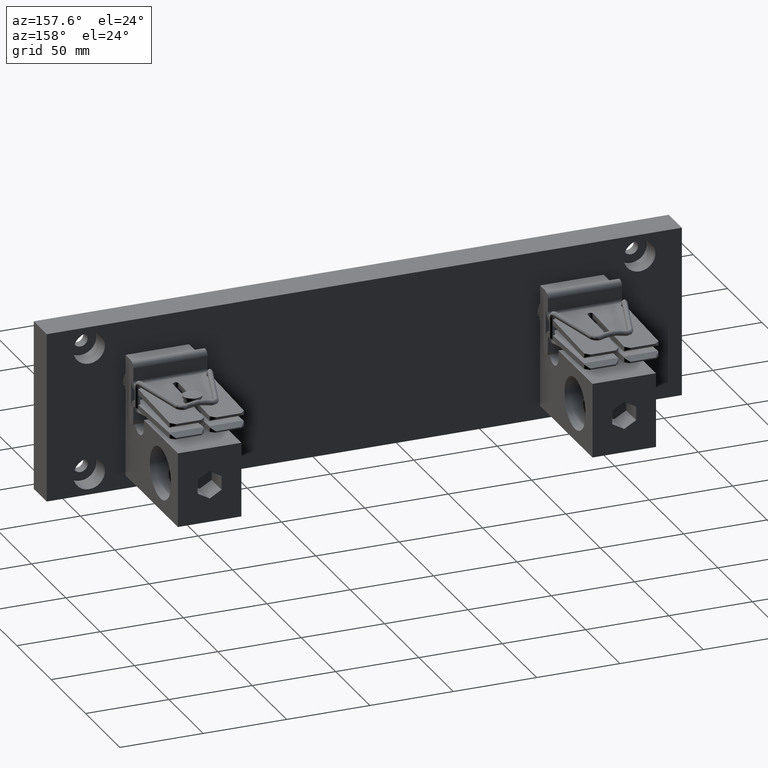
[diagram: clean part render]
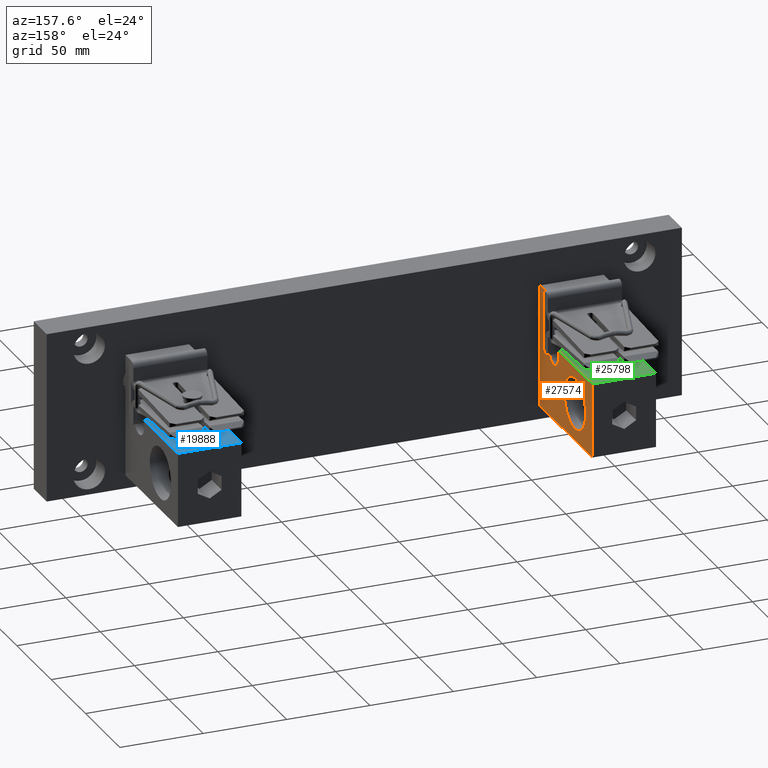
[diagram: same view with three faces highlighted in distinct colors, each labeled with its STEP entity id]
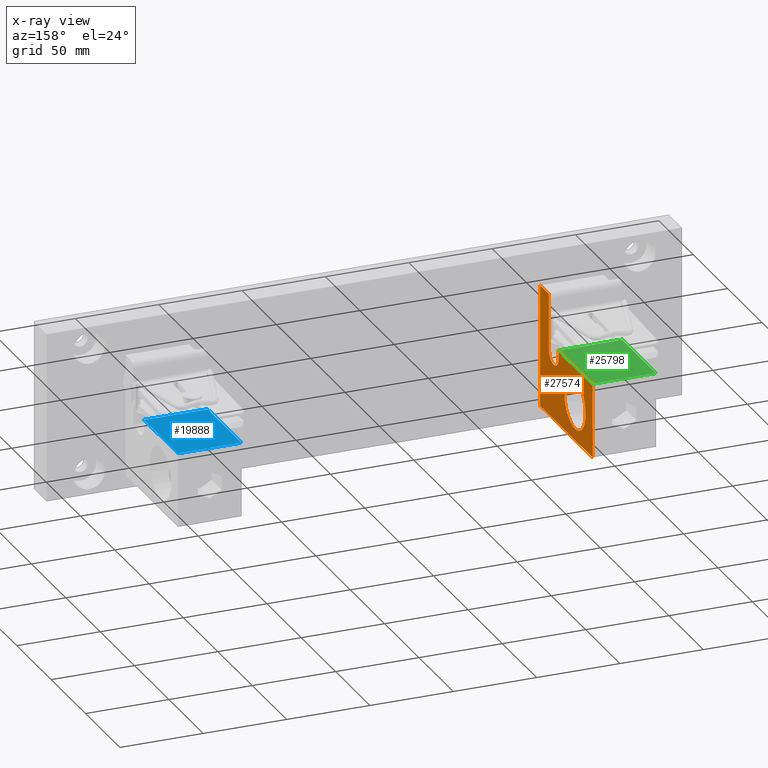
[diagram: x-ray of the same camera — body ghosted, the three highlighted faces saturated]
A machine part, auxiliary view with three faces highlighted in distinct colors.
The next image is the same camera in x-ray (body ghosted, the three faces saturated) — at least one of them is partly hidden behind the body in this view.
Their STEP definitions:

[orange] entity #27574 — the highlighted planar face has unit normal (-1, -0, 0).
#133 = ORIENTED_EDGE ( 'NONE', *, *, #3349, .F. ) ;
#528 = FACE_OUTER_BOUND ( 'NONE', #13735, .T. ) ;
#1129 = VERTEX_POINT ( 'NONE', #12128 ) ;
#1317 = CARTESIAN_POINT ( 'NONE',  ( 0.7500000000000001100, 0.5599999999999997200, -0.6700000000000002600 ) ) ;
#1650 = EDGE_CURVE ( 'NONE', #13531, #17684, #15294, .T. ) ;
#1754 = VERTEX_POINT ( 'NONE', #19779 ) ;
#1758 = VECTOR ( 'NONE', #7802, 39.37007874015748100 ) ;
#2224 = CARTESIAN_POINT ( 'NONE',  ( 0.7499999999999993300, 1.499999999999999800, -1.375000000000000000 ) ) ;
#2800 = ORIENTED_EDGE ( 'NONE', *, *, #27506, .F. ) ;
#3053 = CARTESIAN_POINT ( 'NONE',  ( 0.7500000000000001100, 0.2799999999999998600, -0.6700000000000002600 ) ) ;
#3349 = EDGE_CURVE ( 'NONE', #1754, #23764, #12675, .T. ) ;
#3625 = DIRECTION ( 'NONE',  ( -3.835122127709274900E-017, 1.000000000000000000, 7.219288648996673600E-018 ) ) ;
#3735 = VECTOR ( 'NONE', #4791, 39.37007874015748100 ) ;
#3784 = VECTOR ( 'NONE', #7106, 39.37007874015748100 ) ;
#4087 = LINE ( 'NONE', #11709, #3735 ) ;
#4199 = CARTESIAN_POINT ( 'NONE',  ( 0.7500000000000001100, -1.365923996832131600E-016, -0.6700000000000002600 ) ) ;
#4546 = DIRECTION ( 'NONE',  ( 2.242896546522383700E-016, 0.0000000000000000000, 1.000000000000000000 ) ) ;
#4791 = DIRECTION ( 'NONE',  ( 3.835122127709275500E-017, -1.000000000000000000, 2.647359470298892500E-017 ) ) ;
#5254 = CARTESIAN_POINT ( 'NONE',  ( 0.7499999999999996700, -0.5000000000000000000, -2.255000000000000300 ) ) ;
#5387 = DIRECTION ( 'NONE',  ( 2.220446049250313100E-016, -7.219288648996664300E-018, 1.000000000000000000 ) ) ;
#5470 = VERTEX_POINT ( 'NONE', #10855 ) ;
#5904 = ORIENTED_EDGE ( 'NONE', *, *, #13858, .F. ) ;
#6220 = EDGE_CURVE ( 'NONE', #9141, #17774, #11582, .T. ) ;
#6612 = EDGE_CURVE ( 'NONE', #17684, #1129, #25476, .T. ) ;
#7106 = DIRECTION ( 'NONE',  ( -2.220446049250313100E-016, -9.825746786313706100E-017, -1.000000000000000000 ) ) ;
#7802 = DIRECTION ( 'NONE',  ( 2.220446049250313100E-016, -7.219288648996664300E-018, 1.000000000000000000 ) ) ;
#8055 = EDGE_CURVE ( 'NONE', #5470, #13531, #9825, .T. ) ;
#8548 = CARTESIAN_POINT ( 'NONE',  ( 0.7500000000000003300, -0.5000000000000000000, 0.6250000000000000000 ) ) ;
#8685 = ORIENTED_EDGE ( 'NONE', *, *, #6220, .F. ) ;
#8819 = CARTESIAN_POINT ( 'NONE',  ( 0.7499999999999995600, 1.499999999999999800, -0.7660000000000000100 ) ) ;
#9133 = CARTESIAN_POINT ( 'NONE',  ( 0.7500000000000001100, 0.5599999999999999400, -0.6700000000000002600 ) ) ;
#9141 = VERTEX_POINT ( 'NONE', #5254 ) ;
#9644 = CARTESIAN_POINT ( 'NONE',  ( 0.7500000000000003300, -0.5000000000000000000, 0.6250000000000000000 ) ) ;
#9825 = LINE ( 'NONE', #20528, #3784 ) ;
#10121 = LINE ( 'NONE', #9644, #27322 ) ;
#10855 = CARTESIAN_POINT ( 'NONE',  ( 0.7500000000000003300, 0.0000000000000000000, 0.6250000000000000000 ) ) ;
#10856 = LINE ( 'NONE', #17101, #24157 ) ;
#11199 = CIRCLE ( 'NONE', #20645, 0.6089999999999999900 ) ;
#11582 = LINE ( 'NONE', #25749, #1758 ) ;
#11709 = CARTESIAN_POINT ( 'NONE',  ( 0.7499999999999995600, 2.500000000000000000, -2.255000000000000300 ) ) ;
#12128 = CARTESIAN_POINT ( 'NONE',  ( 0.7500000000000001100, 0.5599999999999997200, -0.4950000000000000500 ) ) ;
#12675 = LINE ( 'NONE', #21938, #19154 ) ;
#13531 = VERTEX_POINT ( 'NONE', #4199 ) ;
#13657 = ORIENTED_EDGE ( 'NONE', *, *, #25190, .F. ) ;
#13735 = EDGE_LOOP ( 'NONE', ( #13657, #133, #5904, #15896, #15248, #14757, #2800, #8685 ) ) ;
#13858 = EDGE_CURVE ( 'NONE', #1129, #1754, #10856, .T. ) ;
#14757 = ORIENTED_EDGE ( 'NONE', *, *, #8055, .F. ) ;
#15248 = ORIENTED_EDGE ( 'NONE', *, *, #1650, .F. ) ;
#15294 = CIRCLE ( 'NONE', #19023, 0.2799999999999999700 ) ;
#15303 = ORIENTED_EDGE ( 'NONE', *, *, #26926, .T. ) ;
#15896 = ORIENTED_EDGE ( 'NONE', *, *, #6612, .F. ) ;
#17101 = CARTESIAN_POINT ( 'NONE',  ( 0.7500000000000001100, 0.5599999999999997200, -0.4950000000000000500 ) ) ;
#17684 = VERTEX_POINT ( 'NONE', #9133 ) ;
#17774 = VERTEX_POINT ( 'NONE', #8548 ) ;
#18015 = DIRECTION ( 'NONE',  ( -1.000000000000000000, -3.835122127709274900E-017, 2.220446049250313100E-016 ) ) ;
#18848 = DIRECTION ( 'NONE',  ( -1.000000000000000000, -3.835122127709274900E-017, 2.220446049250313100E-016 ) ) ;
#19023 = AXIS2_PLACEMENT_3D ( 'NONE', #20522, #20332, #19867 ) ;
#19154 = VECTOR ( 'NONE', #23117, 39.37007874015748100 ) ;
#19384 = AXIS2_PLACEMENT_3D ( 'NONE', #3053, #18848, #5387 ) ;
#19779 = CARTESIAN_POINT ( 'NONE',  ( 0.7499999999999998900, 2.500000000000000400, -0.4950000000000000500 ) ) ;
#19867 = DIRECTION ( 'NONE',  ( 0.0000000000000000000, 0.0000000000000000000, 1.000000000000000000 ) ) ;
#20332 = DIRECTION ( 'NONE',  ( 1.000000000000000000, 3.835122127709274900E-017, -2.220446049250313100E-016 ) ) ;
#20522 = CARTESIAN_POINT ( 'NONE',  ( 0.7500000000000001100, 0.2799999999999998600, -0.6700000000000002600 ) ) ;
#20528 = CARTESIAN_POINT ( 'NONE',  ( 0.7500000000000003300, 0.0000000000000000000, 0.6250000000000000000 ) ) ;
#20645 = AXIS2_PLACEMENT_3D ( 'NONE', #2224, #18015, #4546 ) ;
#20987 = PLANE ( 'NONE',  #19384 ) ;
#21938 = CARTESIAN_POINT ( 'NONE',  ( 0.7499999999999998900, 2.500000000000000400, -0.4950000000000000500 ) ) ;
#23117 = DIRECTION ( 'NONE',  ( -2.220446049250313100E-016, -3.032179833583060000E-016, -1.000000000000000000 ) ) ;
#23764 = VERTEX_POINT ( 'NONE', #29059 ) ;
#23776 = FACE_BOUND ( 'NONE', #25377, .T. ) ;
#24157 = VECTOR ( 'NONE', #3625, 39.37007874015748100 ) ;
#24404 = VECTOR ( 'NONE', #26040, 39.37007874015748100 ) ;
#25190 = EDGE_CURVE ( 'NONE', #23764, #9141, #4087, .T. ) ;
#25331 = DIRECTION ( 'NONE',  ( -3.835122127709274900E-017, 1.000000000000000000, 7.219288648996673600E-018 ) ) ;
#25377 = EDGE_LOOP ( 'NONE', ( #15303 ) ) ;
#25476 = LINE ( 'NONE', #1317, #24404 ) ;
#25749 = CARTESIAN_POINT ( 'NONE',  ( 0.7499999999999996700, -0.5000000000000000000, -2.255000000000000300 ) ) ;
#26040 = DIRECTION ( 'NONE',  ( 2.220446049250313100E-016, -7.219288648996664300E-018, 1.000000000000000000 ) ) ;
#26926 = EDGE_CURVE ( 'NONE', #28838, #28838, #11199, .T. ) ;
#27322 = VECTOR ( 'NONE', #25331, 39.37007874015748100 ) ;
#27506 = EDGE_CURVE ( 'NONE', #17774, #5470, #10121, .T. ) ;
#27574 = ADVANCED_FACE ( 'NONE', ( #23776, #528 ), #20987, .F. ) ;
#28838 = VERTEX_POINT ( 'NONE', #8819 ) ;
#29059 = CARTESIAN_POINT ( 'NONE',  ( 0.7499999999999995600, 2.500000000000000000, -2.255000000000000300 ) ) ;

[blue] entity #19888 — the highlighted planar face has unit normal (-0, 0, -1).
#125 = PLANE ( 'NONE',  #20793 ) ;
#241 = LINE ( 'NONE', #29166, #27367 ) ;
#818 = VERTEX_POINT ( 'NONE', #8767 ) ;
#2671 = VECTOR ( 'NONE', #9398, 39.37007874015748100 ) ;
#5250 = FACE_OUTER_BOUND ( 'NONE', #8960, .T. ) ;
#6454 = ORIENTED_EDGE ( 'NONE', *, *, #25932, .F. ) ;
#6654 = EDGE_CURVE ( 'NONE', #818, #20599, #19615, .T. ) ;
#7259 = DIRECTION ( 'NONE',  ( 1.000000000000000000, -3.491106940328970000E-017, -2.775557561562891400E-016 ) ) ;
#7304 = CARTESIAN_POINT ( 'NONE',  ( 9.040000000000000900, 0.5599999999999997200, -0.4950000000000011600 ) ) ;
#8204 = CARTESIAN_POINT ( 'NONE',  ( 10.54000000000000100, 0.5599999999999997200, -0.4950000000000016600 ) ) ;
#8767 = CARTESIAN_POINT ( 'NONE',  ( 10.54000000000000100, 0.5599999999999997200, -0.4950000000000016600 ) ) ;
#8960 = EDGE_LOOP ( 'NONE', ( #22708, #6454, #10437, #20320 ) ) ;
#9398 = DIRECTION ( 'NONE',  ( 1.000000000000000000, -3.491106940328970000E-017, -2.775557561562891400E-016 ) ) ;
#9562 = DIRECTION ( 'NONE',  ( -1.000000000000000000, 3.491106940328970000E-017, 2.775557561562891400E-016 ) ) ;
#10437 = ORIENTED_EDGE ( 'NONE', *, *, #21543, .F. ) ;
#12268 = CARTESIAN_POINT ( 'NONE',  ( 9.040000000000000900, 2.500000000000000400, -0.4950000000000011600 ) ) ;
#12807 = DIRECTION ( 'NONE',  ( 3.491106940328971200E-017, 1.000000000000000000, 5.945035953114833700E-018 ) ) ;
#13122 = LINE ( 'NONE', #26814, #13785 ) ;
#13785 = VECTOR ( 'NONE', #29086, 39.37007874015748100 ) ;
#17714 = VERTEX_POINT ( 'NONE', #12268 ) ;
#19134 = VECTOR ( 'NONE', #12807, 39.37007874015748100 ) ;
#19615 = LINE ( 'NONE', #8204, #19134 ) ;
#19711 = CARTESIAN_POINT ( 'NONE',  ( 10.54000000000000100, 2.500000000000000400, -0.4950000000000016600 ) ) ;
#19888 = ADVANCED_FACE ( 'NONE', ( #5250 ), #125, .F. ) ;
#19977 = VERTEX_POINT ( 'NONE', #23144 ) ;
#20320 = ORIENTED_EDGE ( 'NONE', *, *, #22098, .T. ) ;
#20599 = VERTEX_POINT ( 'NONE', #19711 ) ;
#20793 = AXIS2_PLACEMENT_3D ( 'NONE', #7304, #22942, #9562 ) ;
#21543 = EDGE_CURVE ( 'NONE', #19977, #17714, #13122, .T. ) ;
#21714 = LINE ( 'NONE', #22799, #2671 ) ;
#22098 = EDGE_CURVE ( 'NONE', #19977, #818, #21714, .T. ) ;
#22708 = ORIENTED_EDGE ( 'NONE', *, *, #6654, .T. ) ;
#22799 = CARTESIAN_POINT ( 'NONE',  ( 9.040000000000000900, 0.5599999999999997200, -0.4950000000000011600 ) ) ;
#22942 = DIRECTION ( 'NONE',  ( -2.775557561562891400E-016, 5.945035953114842200E-018, -1.000000000000000000 ) ) ;
#23144 = CARTESIAN_POINT ( 'NONE',  ( 9.040000000000000900, 0.5599999999999997200, -0.4950000000000011600 ) ) ;
#25932 = EDGE_CURVE ( 'NONE', #17714, #20599, #241, .T. ) ;
#26814 = CARTESIAN_POINT ( 'NONE',  ( 9.040000000000000900, 0.5599999999999997200, -0.4950000000000011600 ) ) ;
#27367 = VECTOR ( 'NONE', #7259, 39.37007874015748100 ) ;
#29086 = DIRECTION ( 'NONE',  ( 3.491106940328971200E-017, 1.000000000000000000, 5.945035953114833700E-018 ) ) ;
#29166 = CARTESIAN_POINT ( 'NONE',  ( 9.040000000000000900, 2.500000000000000400, -0.4950000000000011600 ) ) ;

[green] entity #25798 — the highlighted planar face has unit normal (-0, 0, -1).
#407 = VECTOR ( 'NONE', #2276, 39.37007874015748100 ) ;
#511 = EDGE_CURVE ( 'NONE', #6988, #12820, #13126, .T. ) ;
#1129 = VERTEX_POINT ( 'NONE', #12128 ) ;
#1754 = VERTEX_POINT ( 'NONE', #19779 ) ;
#2147 = EDGE_CURVE ( 'NONE', #6988, #1129, #17208, .T. ) ;
#2276 = DIRECTION ( 'NONE',  ( 1.000000000000000000, 3.835122127709274900E-017, -2.220446049250313100E-016 ) ) ;
#3625 = DIRECTION ( 'NONE',  ( -3.835122127709274900E-017, 1.000000000000000000, 7.219288648996673600E-018 ) ) ;
#4383 = CARTESIAN_POINT ( 'NONE',  ( -0.7500000000000001100, 0.5599999999999997200, -0.4949999999999995000 ) ) ;
#5669 = VECTOR ( 'NONE', #18266, 39.37007874015748100 ) ;
#5899 = DIRECTION ( 'NONE',  ( -3.835122127709274900E-017, 1.000000000000000000, 7.219288648996673600E-018 ) ) ;
#6197 = CARTESIAN_POINT ( 'NONE',  ( -0.7500000000000001100, 0.5599999999999997200, -0.4949999999999995000 ) ) ;
#6676 = DIRECTION ( 'NONE',  ( -1.000000000000000000, -3.835122127709274900E-017, 2.220446049250313100E-016 ) ) ;
#6863 = ORIENTED_EDGE ( 'NONE', *, *, #2147, .T. ) ;
#6988 = VERTEX_POINT ( 'NONE', #12476 ) ;
#8848 = PLANE ( 'NONE',  #19120 ) ;
#10736 = EDGE_LOOP ( 'NONE', ( #12939, #10742, #17621, #6863 ) ) ;
#10742 = ORIENTED_EDGE ( 'NONE', *, *, #12224, .F. ) ;
#10856 = LINE ( 'NONE', #17101, #24157 ) ;
#12128 = CARTESIAN_POINT ( 'NONE',  ( 0.7500000000000001100, 0.5599999999999997200, -0.4950000000000000500 ) ) ;
#12224 = EDGE_CURVE ( 'NONE', #12820, #1754, #23307, .T. ) ;
#12369 = VECTOR ( 'NONE', #5899, 39.37007874015748100 ) ;
#12476 = CARTESIAN_POINT ( 'NONE',  ( -0.7500000000000001100, 0.5599999999999997200, -0.4949999999999995000 ) ) ;
#12820 = VERTEX_POINT ( 'NONE', #26885 ) ;
#12939 = ORIENTED_EDGE ( 'NONE', *, *, #13858, .T. ) ;
#13126 = LINE ( 'NONE', #6197, #12369 ) ;
#13582 = CARTESIAN_POINT ( 'NONE',  ( -0.7500000000000002200, 2.500000000000000400, -0.4949999999999995000 ) ) ;
#13858 = EDGE_CURVE ( 'NONE', #1129, #1754, #10856, .T. ) ;
#17101 = CARTESIAN_POINT ( 'NONE',  ( 0.7500000000000001100, 0.5599999999999997200, -0.4950000000000000500 ) ) ;
#17208 = LINE ( 'NONE', #19445, #5669 ) ;
#17621 = ORIENTED_EDGE ( 'NONE', *, *, #511, .F. ) ;
#18266 = DIRECTION ( 'NONE',  ( 1.000000000000000000, 3.835122127709274900E-017, -2.220446049250313100E-016 ) ) ;
#19120 = AXIS2_PLACEMENT_3D ( 'NONE', #4383, #20093, #6676 ) ;
#19445 = CARTESIAN_POINT ( 'NONE',  ( -0.7500000000000001100, 0.5599999999999997200, -0.4949999999999995000 ) ) ;
#19779 = CARTESIAN_POINT ( 'NONE',  ( 0.7499999999999998900, 2.500000000000000400, -0.4950000000000000500 ) ) ;
#20093 = DIRECTION ( 'NONE',  ( -2.220446049250313100E-016, 7.219288648996664300E-018, -1.000000000000000000 ) ) ;
#23307 = LINE ( 'NONE', #13582, #407 ) ;
#24157 = VECTOR ( 'NONE', #3625, 39.37007874015748100 ) ;
#25798 = ADVANCED_FACE ( 'NONE', ( #28038 ), #8848, .F. ) ;
#26885 = CARTESIAN_POINT ( 'NONE',  ( -0.7500000000000002200, 2.500000000000000400, -0.4949999999999995000 ) ) ;
#28038 = FACE_OUTER_BOUND ( 'NONE', #10736, .T. ) ;